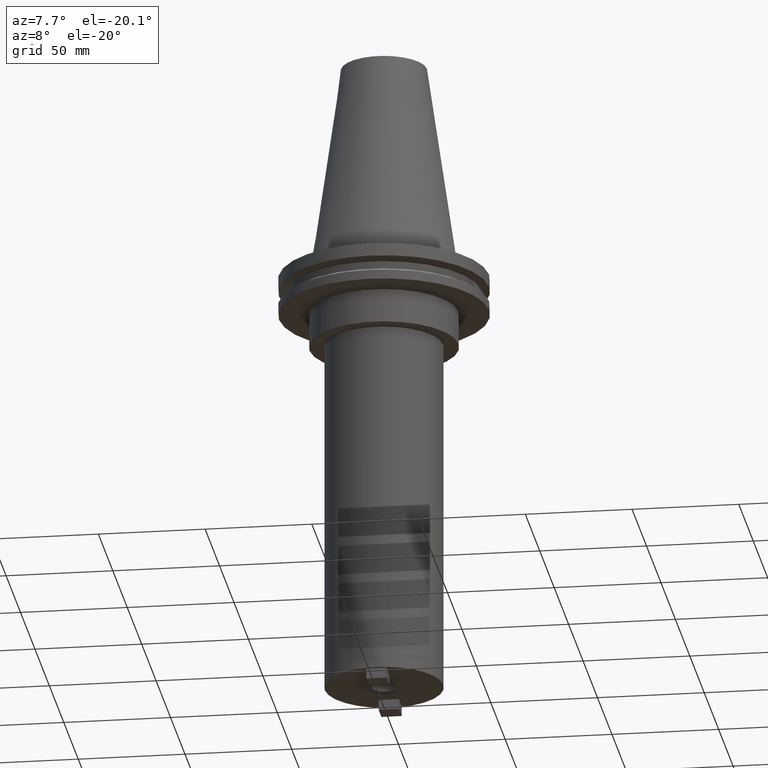
[diagram: clean part render]
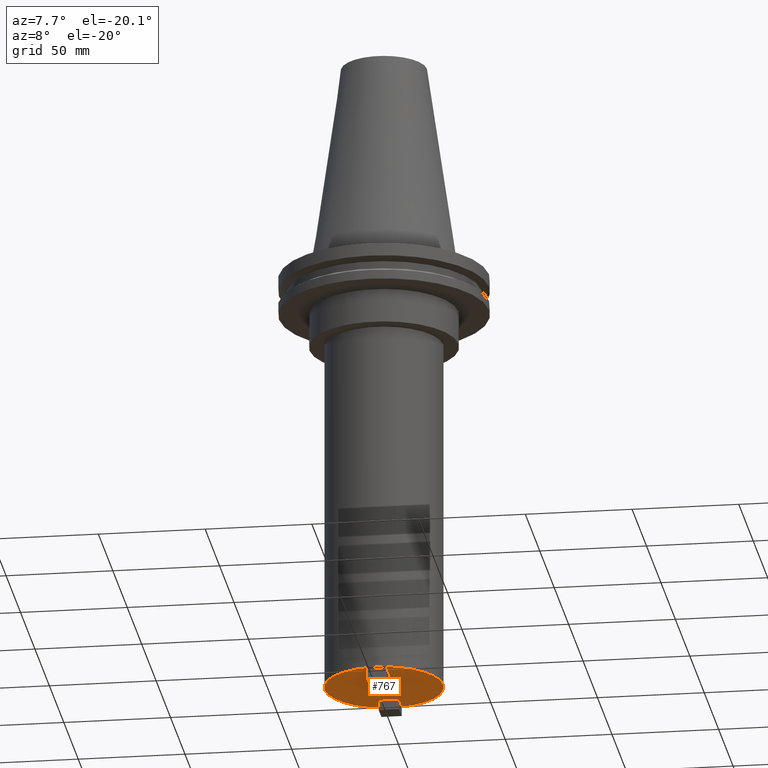
[diagram: same view with one face highlighted and labeled with its STEP entity id]
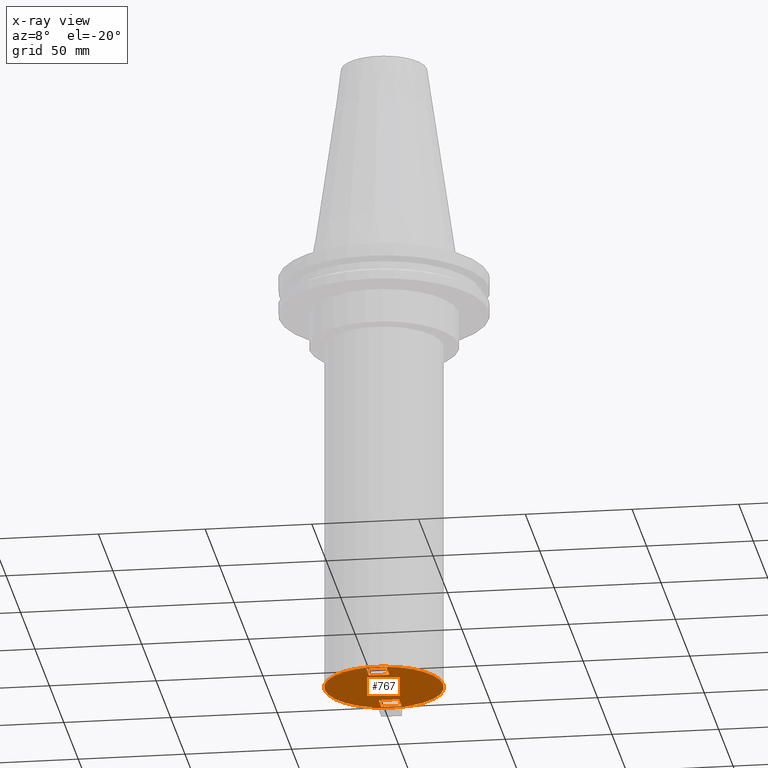
[diagram: x-ray of the same camera — body ghosted, the highlighted face saturated]
A machine part, auxiliary view. The second image highlights one B-rep face of the part: STEP entity #767.
The next image is the same camera in x-ray: the body ghosted, the highlighted face saturated — about 0% of this face is hidden behind the body in this view.
In plain terms, the highlighted planar face has unit normal (0, -0, 1).
Its self-contained STEP definition (entity closure, byte-faithful):
#3 = CARTESIAN_POINT ( 'NONE',  ( -27.80030000000000001, 3.404554841033616429E-15, -203.1999999999999886 ) ) ;
#28 = DIRECTION ( 'NONE',  ( 0.000000000000000000, -0.000000000000000000, 1.000000000000000000 ) ) ;
#34 = DIRECTION ( 'NONE',  ( -1.000000000000000000, 3.642463991552348493E-16, 0.000000000000000000 ) ) ;
#59 = CARTESIAN_POINT ( 'NONE',  ( -4.762500000000018829, 16.68250000000002231, -203.1999999999999886 ) ) ;
#66 = VECTOR ( 'NONE', #952, 1000.000000000000000 ) ;
#79 = DIRECTION ( 'NONE',  ( -1.000000000000000000, 0.000000000000000000, 0.000000000000000000 ) ) ;
#95 = ORIENTED_EDGE ( 'NONE', *, *, #587, .F. ) ;
#113 = FACE_BOUND ( 'NONE', #1020, .T. ) ;
#122 = LINE ( 'NONE', #875, #1050 ) ;
#125 = LINE ( 'NONE', #255, #596 ) ;
#133 = EDGE_CURVE ( 'NONE', #173, #196, #526, .T. ) ;
#136 = ORIENTED_EDGE ( 'NONE', *, *, #554, .F. ) ;
#142 = EDGE_CURVE ( 'NONE', #196, #173, #308, .T. ) ;
#150 = EDGE_LOOP ( 'NONE', ( #1001, #594, #95, #493 ) ) ;
#156 = CIRCLE ( 'NONE', #432, 5.755000000000006111 ) ;
#172 = DIRECTION ( 'NONE',  ( 1.000000000000000000, 0.000000000000000000, 0.000000000000000000 ) ) ;
#173 = VERTEX_POINT ( 'NONE', #329 ) ;
#196 = VERTEX_POINT ( 'NONE', #3 ) ;
#197 = PLANE ( 'NONE',  #939 ) ;
#213 = VERTEX_POINT ( 'NONE', #905 ) ;
#215 = LINE ( 'NONE', #385, #66 ) ;
#217 = VERTEX_POINT ( 'NONE', #990 ) ;
#226 = VERTEX_POINT ( 'NONE', #241 ) ;
#234 = LINE ( 'NONE', #576, #1029 ) ;
#238 = VECTOR ( 'NONE', #553, 1000.000000000000000 ) ;
#240 = CARTESIAN_POINT ( 'NONE',  ( 4.762499999999981526, 26.20750000000001734, -203.1999999999999886 ) ) ;
#241 = CARTESIAN_POINT ( 'NONE',  ( -4.762500000000019718, -16.68249999999999034, -203.1999999999999886 ) ) ;
#244 = LINE ( 'NONE', #829, #332 ) ;
#255 = CARTESIAN_POINT ( 'NONE',  ( 4.762499999999986855, 16.68250000000001876, -203.1999999999999886 ) ) ;
#292 = AXIS2_PLACEMENT_3D ( 'NONE', #737, #748, #172 ) ;
#299 = DIRECTION ( 'NONE',  ( -1.821231995776175725E-16, -1.000000000000000000, -0.000000000000000000 ) ) ;
#307 = DIRECTION ( 'NONE',  ( -2.731847993664259274E-16, 1.000000000000000000, 0.000000000000000000 ) ) ;
#308 = CIRCLE ( 'NONE', #801, 27.80030000000000001 ) ;
#317 = ORIENTED_EDGE ( 'NONE', *, *, #462, .F. ) ;
#329 = CARTESIAN_POINT ( 'NONE',  ( 27.80030000000000001, 0.000000000000000000, -203.1999999999999886 ) ) ;
#332 = VECTOR ( 'NONE', #79, 1000.000000000000000 ) ;
#365 = ORIENTED_EDGE ( 'NONE', *, *, #998, .T. ) ;
#370 = ORIENTED_EDGE ( 'NONE', *, *, #507, .F. ) ;
#376 = ORIENTED_EDGE ( 'NONE', *, *, #133, .F. ) ;
#385 = CARTESIAN_POINT ( 'NONE',  ( -4.762500000000017941, 26.20750000000002089, -203.1999999999999886 ) ) ;
#413 = EDGE_LOOP ( 'NONE', ( #376, #943 ) ) ;
#432 = AXIS2_PLACEMENT_3D ( 'NONE', #987, #503, #924 ) ;
#448 = VERTEX_POINT ( 'NONE', #961 ) ;
#452 = CARTESIAN_POINT ( 'NONE',  ( 4.762499999999988631, -26.20750000000001023, -203.1999999999999886 ) ) ;
#455 = EDGE_CURVE ( 'NONE', #922, #217, #215, .T. ) ;
#459 = VERTEX_POINT ( 'NONE', #452 ) ;
#462 = EDGE_CURVE ( 'NONE', #226, #213, #880, .T. ) ;
#487 = DIRECTION ( 'NONE',  ( 1.000000000000000000, 0.000000000000000000, 0.000000000000000000 ) ) ;
#493 = ORIENTED_EDGE ( 'NONE', *, *, #836, .F. ) ;
#503 = DIRECTION ( 'NONE',  ( -0.000000000000000000, -0.000000000000000000, 1.000000000000000000 ) ) ;
#504 = CIRCLE ( 'NONE', #677, 5.755000000000006111 ) ;
#507 = EDGE_CURVE ( 'NONE', #213, #459, #122, .T. ) ;
#524 = VECTOR ( 'NONE', #307, 1000.000000000000000 ) ;
#526 = CIRCLE ( 'NONE', #292, 27.80030000000000001 ) ;
#546 = ORIENTED_EDGE ( 'NONE', *, *, #951, .F. ) ;
#548 = DIRECTION ( 'NONE',  ( 1.000000000000000000, 0.000000000000000000, 0.000000000000000000 ) ) ;
#553 = DIRECTION ( 'NONE',  ( 1.000000000000000000, -3.642463991552351451E-16, -0.000000000000000000 ) ) ;
#554 = EDGE_CURVE ( 'NONE', #459, #448, #244, .T. ) ;
#576 = CARTESIAN_POINT ( 'NONE',  ( 4.762499999999981526, 26.20750000000001734, -203.1999999999999886 ) ) ;
#584 = CARTESIAN_POINT ( 'NONE',  ( 0.000000000000000000, 0.000000000000000000, -203.1999999999999886 ) ) ;
#587 = EDGE_CURVE ( 'NONE', #664, #754, #234, .T. ) ;
#594 = ORIENTED_EDGE ( 'NONE', *, *, #742, .F. ) ;
#596 = VECTOR ( 'NONE', #34, 1000.000000000000000 ) ;
#597 = FACE_OUTER_BOUND ( 'NONE', #413, .T. ) ;
#635 = LINE ( 'NONE', #1063, #524 ) ;
#664 = VERTEX_POINT ( 'NONE', #240 ) ;
#677 = AXIS2_PLACEMENT_3D ( 'NONE', #704, #955, #548 ) ;
#701 = CARTESIAN_POINT ( 'NONE',  ( 4.762499999999990408, -16.68250000000000810, -203.1999999999999886 ) ) ;
#704 = CARTESIAN_POINT ( 'NONE',  ( 0.000000000000000000, 0.000000000000000000, -203.1999999999999886 ) ) ;
#719 = LINE ( 'NONE', #960, #238 ) ;
#726 = DIRECTION ( 'NONE',  ( -0.000000000000000000, -0.000000000000000000, 1.000000000000000000 ) ) ;
#737 = CARTESIAN_POINT ( 'NONE',  ( 0.000000000000000000, 0.000000000000000000, -203.1999999999999886 ) ) ;
#741 = DIRECTION ( 'NONE',  ( 6.374311985216615162E-16, -1.000000000000000000, 0.000000000000000000 ) ) ;
#742 = EDGE_CURVE ( 'NONE', #754, #922, #125, .T. ) ;
#748 = DIRECTION ( 'NONE',  ( -0.000000000000000000, -0.000000000000000000, 1.000000000000000000 ) ) ;
#754 = VERTEX_POINT ( 'NONE', #1033 ) ;
#756 = CARTESIAN_POINT ( 'NONE',  ( 0.000000000000000000, 27.80030000000000001, -203.1999999999999886 ) ) ;
#767 = ADVANCED_FACE ( 'NONE', ( #789, #597, #925, #113 ), #197, .F. ) ;
#789 = FACE_BOUND ( 'NONE', #150, .T. ) ;
#790 = EDGE_CURVE ( 'NONE', #857, #945, #504, .T. ) ;
#801 = AXIS2_PLACEMENT_3D ( 'NONE', #584, #726, #487 ) ;
#821 = CARTESIAN_POINT ( 'NONE',  ( 5.755000000000006111, 0.000000000000000000, -203.1999999999999886 ) ) ;
#829 = CARTESIAN_POINT ( 'NONE',  ( 4.762499999999988631, -26.20750000000000668, -203.1999999999999886 ) ) ;
#836 = EDGE_CURVE ( 'NONE', #217, #664, #719, .T. ) ;
#857 = VERTEX_POINT ( 'NONE', #821 ) ;
#875 = CARTESIAN_POINT ( 'NONE',  ( 4.762499999999988631, -26.20750000000000668, -203.1999999999999886 ) ) ;
#880 = LINE ( 'NONE', #701, #909 ) ;
#905 = CARTESIAN_POINT ( 'NONE',  ( 4.762499999999990408, -16.68250000000000455, -203.1999999999999886 ) ) ;
#909 = VECTOR ( 'NONE', #1039, 1000.000000000000000 ) ;
#922 = VERTEX_POINT ( 'NONE', #59 ) ;
#924 = DIRECTION ( 'NONE',  ( 1.000000000000000000, 0.000000000000000000, 0.000000000000000000 ) ) ;
#925 = FACE_BOUND ( 'NONE', #928, .T. ) ;
#928 = EDGE_LOOP ( 'NONE', ( #1041, #365 ) ) ;
#939 = AXIS2_PLACEMENT_3D ( 'NONE', #756, #28, #946 ) ;
#943 = ORIENTED_EDGE ( 'NONE', *, *, #142, .F. ) ;
#945 = VERTEX_POINT ( 'NONE', #1052 ) ;
#946 = DIRECTION ( 'NONE',  ( 1.000000000000000000, 0.000000000000000000, 0.000000000000000000 ) ) ;
#951 = EDGE_CURVE ( 'NONE', #448, #226, #635, .T. ) ;
#952 = DIRECTION ( 'NONE',  ( 9.106159978880878627E-17, 1.000000000000000000, -0.000000000000000000 ) ) ;
#955 = DIRECTION ( 'NONE',  ( -0.000000000000000000, -0.000000000000000000, 1.000000000000000000 ) ) ;
#960 = CARTESIAN_POINT ( 'NONE',  ( 4.762499999999981526, 26.20750000000001734, -203.1999999999999886 ) ) ;
#961 = CARTESIAN_POINT ( 'NONE',  ( -4.762500000000017053, -26.20750000000000668, -203.1999999999999886 ) ) ;
#987 = CARTESIAN_POINT ( 'NONE',  ( 0.000000000000000000, 0.000000000000000000, -203.1999999999999886 ) ) ;
#990 = CARTESIAN_POINT ( 'NONE',  ( -4.762500000000017941, 26.20750000000002444, -203.1999999999999886 ) ) ;
#998 = EDGE_CURVE ( 'NONE', #945, #857, #156, .T. ) ;
#1001 = ORIENTED_EDGE ( 'NONE', *, *, #455, .F. ) ;
#1020 = EDGE_LOOP ( 'NONE', ( #546, #136, #370, #317 ) ) ;
#1029 = VECTOR ( 'NONE', #741, 1000.000000000000000 ) ;
#1033 = CARTESIAN_POINT ( 'NONE',  ( 4.762499999999986855, 16.68250000000002231, -203.1999999999999886 ) ) ;
#1039 = DIRECTION ( 'NONE',  ( 1.000000000000000000, -1.456985596620939003E-15, -0.000000000000000000 ) ) ;
#1041 = ORIENTED_EDGE ( 'NONE', *, *, #790, .T. ) ;
#1050 = VECTOR ( 'NONE', #299, 1000.000000000000000 ) ;
#1052 = CARTESIAN_POINT ( 'NONE',  ( -5.755000000000006111, 7.047842329093025644E-16, -203.1999999999999886 ) ) ;
#1063 = CARTESIAN_POINT ( 'NONE',  ( -4.762500000000017053, -26.20750000000000668, -203.1999999999999886 ) ) ;